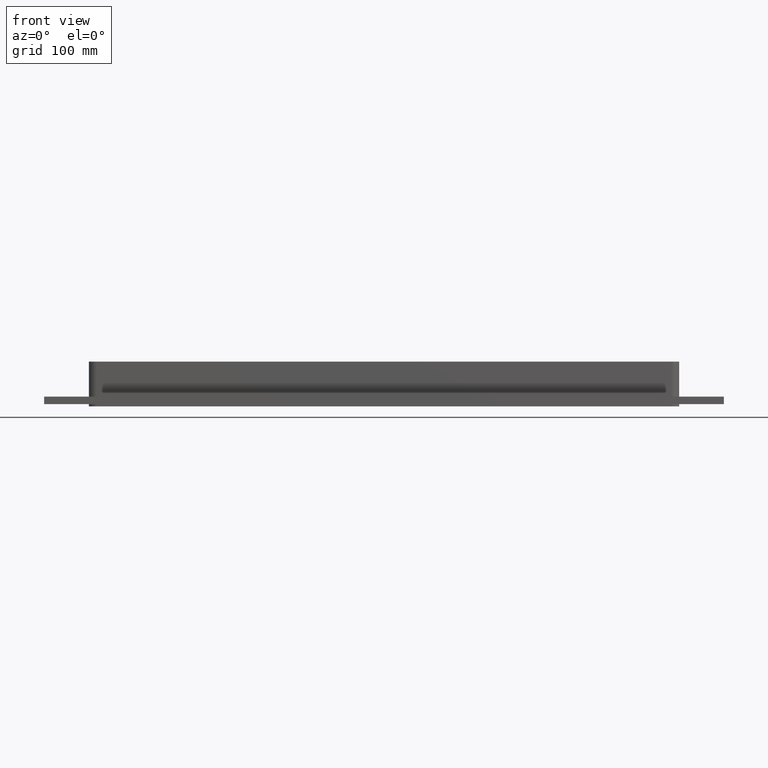
[diagram: clean part render]
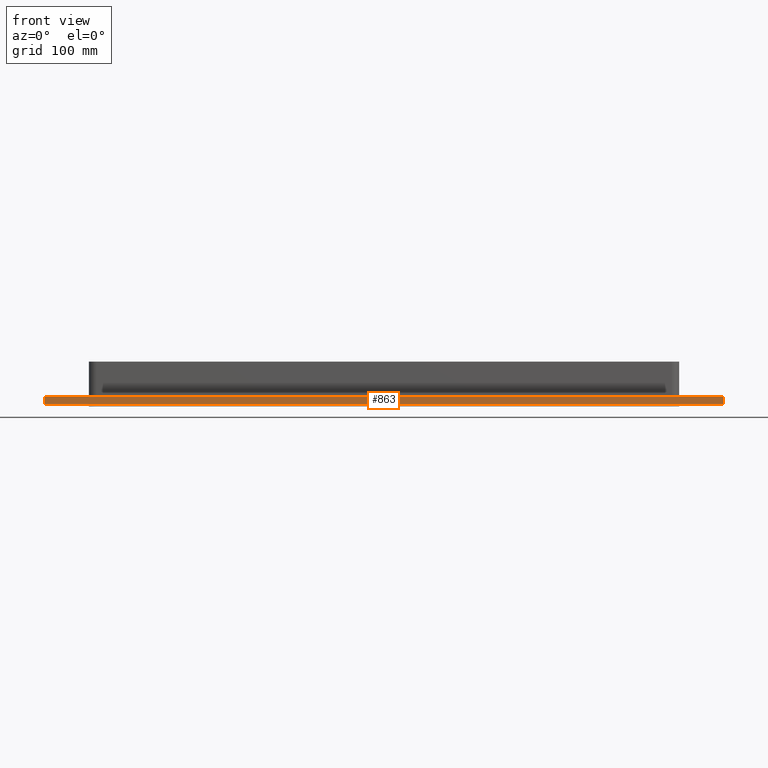
[diagram: same view with one face highlighted and labeled with its STEP entity id]
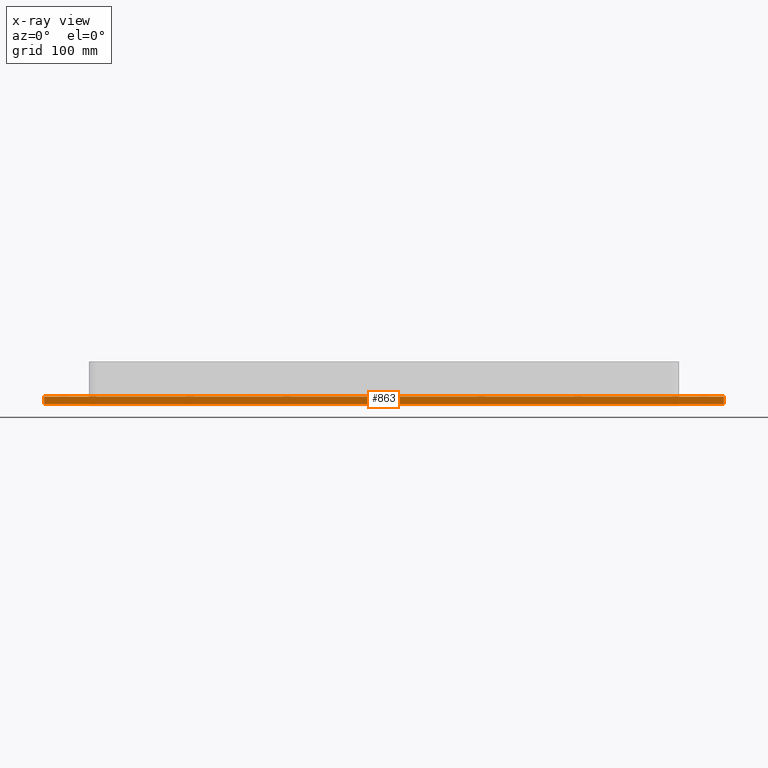
[diagram: x-ray of the same camera — body ghosted, the highlighted face saturated]
A machine part, front view. The second image highlights one B-rep face of the part: STEP entity #863.
The next image is the same camera in x-ray: the body ghosted, the highlighted face saturated — about 0% of this face is hidden behind the body in this view.
In plain terms, the highlighted planar face has unit normal (0, -1, 0).
Its self-contained STEP definition (entity closure, byte-faithful):
#745=CARTESIAN_POINT('',(-456.50000000000006,-179.00000000000006,-27.0));
#746=VERTEX_POINT('',#745);
#755=CARTESIAN_POINT('',(-456.50000000000006,-179.00000000000006,-17.0));
#756=VERTEX_POINT('',#755);
#757=CARTESIAN_POINT('',(-456.50000000000006,-179.00000000000006,-27.0));
#758=DIRECTION('',(0.0,0.0,1.0));
#759=VECTOR('',#758,10.0);
#760=LINE('',#757,#759);
#761=EDGE_CURVE('',#746,#756,#760,.T.);
#816=CARTESIAN_POINT('',(456.50000000000006,-178.99999999999994,-27.0));
#817=VERTEX_POINT('',#816);
#825=CARTESIAN_POINT('',(456.50000000000006,-178.99999999999994,-17.0));
#826=VERTEX_POINT('',#825);
#833=CARTESIAN_POINT('',(456.50000000000006,-178.99999999999994,-27.0));
#834=DIRECTION('',(0.0,0.0,1.0));
#835=VECTOR('',#834,10.0);
#836=LINE('',#833,#835);
#837=EDGE_CURVE('',#817,#826,#836,.T.);
#842=CARTESIAN_POINT('',(-456.50000000000006,-179.00000000000006,-27.0));
#843=DIRECTION('',(0.0,-1.0,0.0));
#844=DIRECTION('',(1.0,0.0,0.0));
#845=AXIS2_PLACEMENT_3D('',#842,#843,#844);
#846=PLANE('',#845);
#847=CARTESIAN_POINT('',(456.50000000000006,-178.99999999999994,-27.0));
#848=DIRECTION('',(-1.0,0.0,0.0));
#849=VECTOR('',#848,913.00000000000011);
#850=LINE('',#847,#849);
#851=EDGE_CURVE('',#817,#746,#850,.T.);
#852=ORIENTED_EDGE('',*,*,#851,.F.);
#853=ORIENTED_EDGE('',*,*,#837,.T.);
#854=CARTESIAN_POINT('',(-456.50000000000006,-179.00000000000006,-17.0));
#855=DIRECTION('',(1.0,0.0,0.0));
#856=VECTOR('',#855,913.00000000000011);
#857=LINE('',#854,#856);
#858=EDGE_CURVE('',#756,#826,#857,.T.);
#859=ORIENTED_EDGE('',*,*,#858,.F.);
#860=ORIENTED_EDGE('',*,*,#761,.F.);
#861=EDGE_LOOP('',(#852,#853,#859,#860));
#862=FACE_OUTER_BOUND('',#861,.T.);
#863=ADVANCED_FACE('',(#862),#846,.T.);